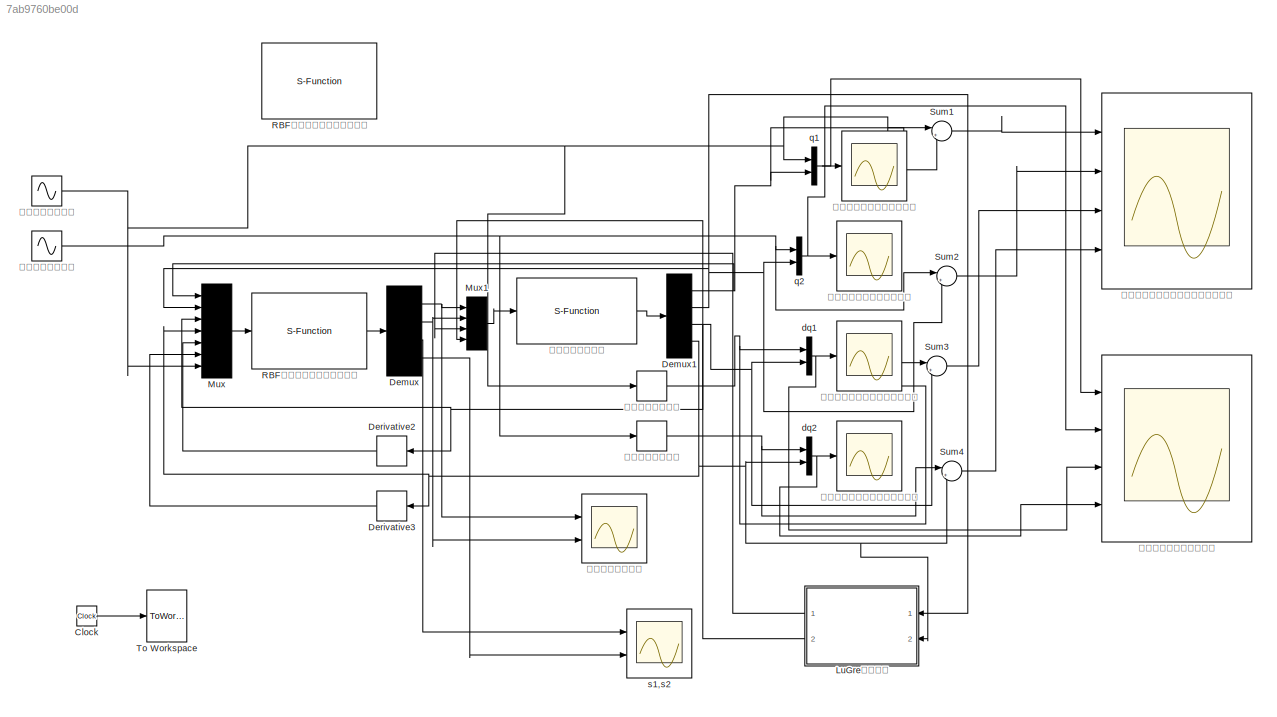
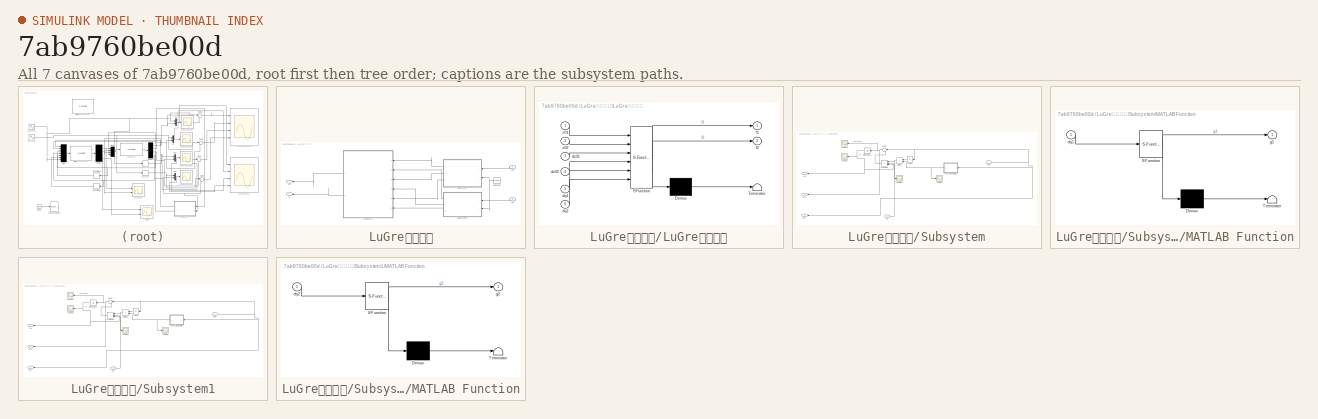
[diagram: thumbnail index - all 7 canvases of the model, root first then tree order]
MODEL slx_7ab9760be00d
KIND model
CONFIG AbsTol = auto
CONFIG EnableMultiTasking = off
CONFIG FixedStep = 0.001
CONFIG MaxStep = auto
CONFIG MinStep = auto
CONFIG RelTol = 1e-3
CONFIG SampleTimeConstraint = Unconstrained
CONFIG Solver = ode4
CONFIG SolverName = ode4
CONFIG StartTime = 0.0
CONFIG StopTime = 10.0
BLOCK [Clock] Clock
BLOCK [Demux] Demux
  DisplayOption = bar
  Ports = [1, 4]
BLOCK [Demux] Demux1
  DisplayOption = bar
  Ports = [1, 4]
BLOCK [Derivative] Derivative2
BLOCK [Derivative] Derivative3
BLOCK [SubSystem] LuGre摩擦模型
  Commented = on
  Ports = [2, 2]
  RequestExecContextInheritance = off
BLOCK [Constant] LuGre摩擦模型/Constant
  Value = 84000
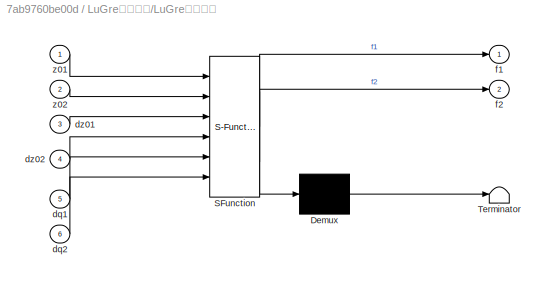
BLOCK [SubSystem] LuGre摩擦模型/LuGre摩擦模型
  ErrorFcn = Stateflow.Translate.translate
  PermitHierarchicalResolution = ExplicitOnly
  Ports = [6, 2]
  RequestExecContextInheritance = off
  SFBlockType = MATLAB Function
  TreatAsAtomicUnit = on
BLOCK [Demux] LuGre摩擦模型/LuGre摩擦模型/ Demux 
  Outputs = 1
  Ports = [1, 1]
BLOCK [S-Function] LuGre摩擦模型/LuGre摩擦模型/ SFunction 
  EnableBusSupport = on
  FunctionName = sf_sfun
  PortCounts = [6 3]
  Ports = [6, 3]
  SFcnIsStateOwnerBlock = off
  SFunctionDeploymentMode = off
  Tag = Stateflow S-Function 7
BLOCK [Terminator] LuGre摩擦模型/LuGre摩擦模型/ Terminator 
BLOCK [Inport] LuGre摩擦模型/LuGre摩擦模型/dq1
  IconDisplay = Port number
  Port = 5
BLOCK [Inport] LuGre摩擦模型/LuGre摩擦模型/dq2
  IconDisplay = Port number
  Port = 6
BLOCK [Inport] LuGre摩擦模型/LuGre摩擦模型/dz01
  IconDisplay = Port number
  Port = 3
BLOCK [Inport] LuGre摩擦模型/LuGre摩擦模型/dz02
  IconDisplay = Port number
  Port = 4
BLOCK [Outport] LuGre摩擦模型/LuGre摩擦模型/f1
  IconDisplay = Port number
BLOCK [Outport] LuGre摩擦模型/LuGre摩擦模型/f2
  IconDisplay = Port number
  Port = 2
BLOCK [Inport] LuGre摩擦模型/LuGre摩擦模型/z01
  IconDisplay = Port number
BLOCK [Inport] LuGre摩擦模型/LuGre摩擦模型/z02
  IconDisplay = Port number
  Port = 2
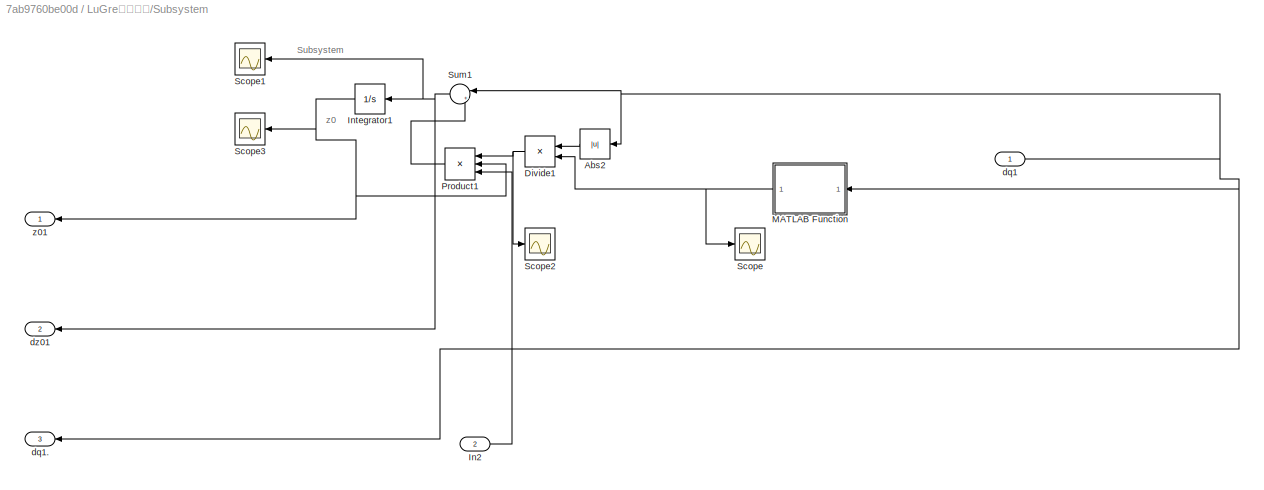
BLOCK [SubSystem] LuGre摩擦模型/Subsystem
  Ports = [2, 3]
  RequestExecContextInheritance = off
BLOCK [Abs] LuGre摩擦模型/Subsystem/Abs2
  SaturateOnIntegerOverflow = off
BLOCK [Product] LuGre摩擦模型/Subsystem/Divide1
  InputSameDT = off
  Inputs = */
  OutDataTypeStr = Inherit: Inherit via internal rule
  Ports = [2, 1]
  RndMeth = Floor
  SaturateOnIntegerOverflow = off
BLOCK [Inport] LuGre摩擦模型/Subsystem/In2
  IconDisplay = Port number
  Port = 2
BLOCK [Integrator] LuGre摩擦模型/Subsystem/Integrator1
  Ports = [1, 1]
BLOCK [SubSystem] LuGre摩擦模型/Subsystem/MATLAB Function
  ErrorFcn = Stateflow.Translate.translate
  PermitHierarchicalResolution = ExplicitOnly
  Ports = [1, 1]
  RequestExecContextInheritance = off
  SFBlockType = MATLAB Function
  TreatAsAtomicUnit = on
BLOCK [Demux] LuGre摩擦模型/Subsystem/MATLAB Function/ Demux 
  Outputs = 1
  Ports = [1, 1]
BLOCK [S-Function] LuGre摩擦模型/Subsystem/MATLAB Function/ SFunction 
  EnableBusSupport = on
  FunctionName = sf_sfun
  PortCounts = [1 2]
  Ports = [1, 2]
  SFcnIsStateOwnerBlock = off
  SFunctionDeploymentMode = off
  Tag = Stateflow S-Function 8
BLOCK [Terminator] LuGre摩擦模型/Subsystem/MATLAB Function/ Terminator 
BLOCK [Inport] LuGre摩擦模型/Subsystem/MATLAB Function/dq1
  IconDisplay = Port number
BLOCK [Outport] LuGre摩擦模型/Subsystem/MATLAB Function/g1
  IconDisplay = Port number
BLOCK [Product] LuGre摩擦模型/Subsystem/Product1
  InputSameDT = off
  Inputs = 3
  OutDataTypeStr = Inherit: Inherit via internal rule
  Ports = [3, 1]
  RndMeth = Floor
  SaturateOnIntegerOverflow = off
BLOCK [Scope] LuGre摩擦模型/Subsystem/Scope
  Floating = off
  NumInputPorts = 1
  Ports = [1]
  ScopeSpecificationString = Simulink.scopes.TimeScopeBlockCfg('CurrentConfiguration', extmgr.ConfigurationSet(extmgr.Configuration('Core','General UI',true),extmgr.Configuration('Core','Source UI',true),extmgr.Configuration('Sources','WiredSimulink',true,'DataLoggingVariableName','ScopeData2'),extmgr.Configuration('Visuals','Time Domain',true,'SerializedDisplays',{struct('MinYLimReal','0.00281','MaxYLimReal','0.00469','YLabe...<+1426ch>
BLOCK [Scope] LuGre摩擦模型/Subsystem/Scope1
  Floating = off
  NumInputPorts = 1
  Ports = [1]
  ScopeSpecificationString = Simulink.scopes.TimeScopeBlockCfg('CurrentConfiguration', extmgr.ConfigurationSet(extmgr.Configuration('Core','General UI',true),extmgr.Configuration('Core','Source UI',true),extmgr.Configuration('Sources','WiredSimulink',true,'DataLoggingVariableName','ScopeData3'),extmgr.Configuration('Visuals','Time Domain',true,'SerializedDisplays',{struct('MinYLimReal','-0.18084','MaxYLimReal','0.57565','YLab...<+1417ch>
BLOCK [Scope] LuGre摩擦模型/Subsystem/Scope2
  Floating = off
  NumInputPorts = 1
  Ports = [1]
  ScopeSpecificationString = Simulink.scopes.TimeScopeBlockCfg('CurrentConfiguration', extmgr.ConfigurationSet(extmgr.Configuration('Core','General UI',true),extmgr.Configuration('Core','Source UI',true),extmgr.Configuration('Sources','WiredSimulink',true,'DataLoggingVariableName','ScopeData4'),extmgr.Configuration('Visuals','Time Domain',true,'SerializedDisplays',{struct('MinYLimReal','17884.97608','MaxYLimReal','20554.9873'...<+1465ch>
BLOCK [Scope] LuGre摩擦模型/Subsystem/Scope3
  Floating = off
  NumInputPorts = 1
  Ports = [1]
  ScopeSpecificationString = Simulink.scopes.TimeScopeBlockCfg('CurrentConfiguration', extmgr.ConfigurationSet(extmgr.Configuration('Core','General UI',true),extmgr.Configuration('Core','Source UI',true),extmgr.Configuration('Sources','WiredSimulink',true,'DataLoggingVariableName','ScopeData5'),extmgr.Configuration('Visuals','Time Domain',true,'SerializedDisplays',{struct('MinYLimReal','-0.00005','MaxYLimReal','0.00043','YLab...<+1459ch>
BLOCK [Sum] LuGre摩擦模型/Subsystem/Sum1
  IconShape = round
  InputSameDT = off
  Inputs = |+-
  OutDataTypeStr = Inherit: Inherit via internal rule
  Ports = [2, 1]
  SaturateOnIntegerOverflow = off
BLOCK [Inport] LuGre摩擦模型/Subsystem/dq1
  IconDisplay = Port number
BLOCK [Outport] LuGre摩擦模型/Subsystem/dq1.
  IconDisplay = Port number
  Port = 3
BLOCK [Outport] LuGre摩擦模型/Subsystem/dz01
  IconDisplay = Port number
  Port = 2
BLOCK [Outport] LuGre摩擦模型/Subsystem/z01
  IconDisplay = Port number
BLOCK [SubSystem] LuGre摩擦模型/Subsystem1
  Ports = [2, 3]
  RequestExecContextInheritance = off
BLOCK [Abs] LuGre摩擦模型/Subsystem1/Abs2
  SaturateOnIntegerOverflow = off
BLOCK [Product] LuGre摩擦模型/Subsystem1/Divide1
  InputSameDT = off
  Inputs = */
  OutDataTypeStr = Inherit: Inherit via internal rule
  Ports = [2, 1]
  RndMeth = Floor
  SaturateOnIntegerOverflow = off
BLOCK [Inport] LuGre摩擦模型/Subsystem1/In2
  IconDisplay = Port number
  Port = 2
BLOCK [Integrator] LuGre摩擦模型/Subsystem1/Integrator1
  Ports = [1, 1]
BLOCK [SubSystem] LuGre摩擦模型/Subsystem1/MATLAB Function
  ErrorFcn = Stateflow.Translate.translate
  PermitHierarchicalResolution = ExplicitOnly
  Ports = [1, 1]
  RequestExecContextInheritance = off
  SFBlockType = MATLAB Function
  TreatAsAtomicUnit = on
BLOCK [Demux] LuGre摩擦模型/Subsystem1/MATLAB Function/ Demux 
  Outputs = 1
  Ports = [1, 1]
BLOCK [S-Function] LuGre摩擦模型/Subsystem1/MATLAB Function/ SFunction 
  EnableBusSupport = on
  FunctionName = sf_sfun
  PortCounts = [1 2]
  Ports = [1, 2]
  SFcnIsStateOwnerBlock = off
  SFunctionDeploymentMode = off
  Tag = Stateflow S-Function 1
BLOCK [Terminator] LuGre摩擦模型/Subsystem1/MATLAB Function/ Terminator 
BLOCK [Inport] LuGre摩擦模型/Subsystem1/MATLAB Function/dq2
  IconDisplay = Port number
BLOCK [Outport] LuGre摩擦模型/Subsystem1/MATLAB Function/g2
  IconDisplay = Port number
BLOCK [Product] LuGre摩擦模型/Subsystem1/Product1
  InputSameDT = off
  Inputs = 3
  OutDataTypeStr = Inherit: Inherit via internal rule
  Ports = [3, 1]
  RndMeth = Floor
  SaturateOnIntegerOverflow = off
BLOCK [Scope] LuGre摩擦模型/Subsystem1/Scope
  Floating = off
  NumInputPorts = 1
  Ports = [1]
  ScopeSpecificationString = Simulink.scopes.TimeScopeBlockCfg('CurrentConfiguration', extmgr.ConfigurationSet(extmgr.Configuration('Core','General UI',true),extmgr.Configuration('Core','Source UI',true),extmgr.Configuration('Sources','WiredSimulink',true,'DataLoggingVariableName','ScopeData2'),extmgr.Configuration('Visuals','Time Domain',true,'SerializedDisplays',{struct('MinYLimReal','0.00281','MaxYLimReal','0.00469','YLabe...<+1426ch>
BLOCK [Scope] LuGre摩擦模型/Subsystem1/Scope1
  Floating = off
  NumInputPorts = 1
  Ports = [1]
  ScopeSpecificationString = Simulink.scopes.TimeScopeBlockCfg('CurrentConfiguration', extmgr.ConfigurationSet(extmgr.Configuration('Core','General UI',true),extmgr.Configuration('Core','Source UI',true),extmgr.Configuration('Sources','WiredSimulink',true,'DataLoggingVariableName','ScopeData3'),extmgr.Configuration('Visuals','Time Domain',true,'SerializedDisplays',{struct('MinYLimReal','-0.18084','MaxYLimReal','0.57565','YLab...<+1417ch>
BLOCK [Scope] LuGre摩擦模型/Subsystem1/Scope2
  Floating = off
  NumInputPorts = 1
  Ports = [1]
  ScopeSpecificationString = Simulink.scopes.TimeScopeBlockCfg('CurrentConfiguration', extmgr.ConfigurationSet(extmgr.Configuration('Core','General UI',true),extmgr.Configuration('Core','Source UI',true),extmgr.Configuration('Sources','WiredSimulink',true,'DataLoggingVariableName','ScopeData4'),extmgr.Configuration('Visuals','Time Domain',true,'SerializedDisplays',{struct('MinYLimReal','17884.97608','MaxYLimReal','20554.9873'...<+1465ch>
BLOCK [Scope] LuGre摩擦模型/Subsystem1/Scope3
  Floating = off
  NumInputPorts = 1
  Ports = [1]
  ScopeSpecificationString = Simulink.scopes.TimeScopeBlockCfg('CurrentConfiguration', extmgr.ConfigurationSet(extmgr.Configuration('Core','General UI',true),extmgr.Configuration('Core','Source UI',true),extmgr.Configuration('Sources','WiredSimulink',true,'DataLoggingVariableName','ScopeData5'),extmgr.Configuration('Visuals','Time Domain',true,'SerializedDisplays',{struct('MinYLimReal','-0.00005','MaxYLimReal','0.00043','YLab...<+1459ch>
BLOCK [Sum] LuGre摩擦模型/Subsystem1/Sum1
  IconShape = round
  InputSameDT = off
  Inputs = |+-
  OutDataTypeStr = Inherit: Inherit via internal rule
  Ports = [2, 1]
  SaturateOnIntegerOverflow = off
BLOCK [Inport] LuGre摩擦模型/Subsystem1/dq2
  IconDisplay = Port number
BLOCK [Outport] LuGre摩擦模型/Subsystem1/dq2.
  IconDisplay = Port number
  Port = 3
BLOCK [Outport] LuGre摩擦模型/Subsystem1/dz02
  IconDisplay = Port number
  Port = 2
BLOCK [Outport] LuGre摩擦模型/Subsystem1/z02
  IconDisplay = Port number
BLOCK [Inport] LuGre摩擦模型/dq1
  IconDisplay = Port number
BLOCK [Inport] LuGre摩擦模型/dq2
  IconDisplay = Port number
  Port = 2
BLOCK [Outport] LuGre摩擦模型/f1
  IconDisplay = Port number
BLOCK [Outport] LuGre摩擦模型/f2
  IconDisplay = Port number
  Port = 2
BLOCK [Mux] Mux
  DisplayOption = bar
  Inputs = 7
  Ports = [7, 1]
BLOCK [Mux] Mux1
  DisplayOption = bar
  Ports = [4, 1]
BLOCK [S-Function] RBF神经网络固定时间控制器
  EnableBusSupport = off
  FunctionName = Fixed_time_NNcontroller
  Ports = [1, 1]
  SFcnIsStateOwnerBlock = off
  SFunctionDeploymentMode = off
BLOCK [S-Function] RBF神经网络普通滑模控制器
  Commented = on
  EnableBusSupport = off
  FunctionName = SMC_NNcontroller
  Ports = [1, 1]
  SFcnIsStateOwnerBlock = off
  SFunctionDeploymentMode = off
BLOCK [Sum] Sum1
  IconShape = round
  InputSameDT = off
  Inputs = |+-
  OutDataTypeStr = Inherit: Inherit via internal rule
  Ports = [2, 1]
  SaturateOnIntegerOverflow = off
BLOCK [Sum] Sum2
  IconShape = round
  InputSameDT = off
  Inputs = |+-
  OutDataTypeStr = Inherit: Inherit via internal rule
  Ports = [2, 1]
  SaturateOnIntegerOverflow = off
BLOCK [Sum] Sum3
  IconShape = round
  InputSameDT = off
  Inputs = |+-
  OutDataTypeStr = Inherit: Inherit via internal rule
  Ports = [2, 1]
  SaturateOnIntegerOverflow = off
BLOCK [Sum] Sum4
  IconShape = round
  InputSameDT = off
  Inputs = |+-
  OutDataTypeStr = Inherit: Inherit via internal rule
  Ports = [2, 1]
  SaturateOnIntegerOverflow = off
BLOCK [ToWorkspace] To Workspace
  FixptAsFi = on
  MaxDataPoints = inf
  Ports = [1]
  SampleTime = -1
  VariableName = t
BLOCK [Mux] dq1
  DisplayOption = bar
  Inputs = 2
  Ports = [2, 1]
BLOCK [Mux] dq2
  DisplayOption = bar
  Inputs = 2
  Ports = [2, 1]
BLOCK [Mux] q1
  DisplayOption = bar
  Inputs = 2
  Ports = [2, 1]
BLOCK [Mux] q2
  DisplayOption = bar
  Inputs = 2
  Ports = [2, 1]
BLOCK [Scope] s1,s2
  Floating = off
  NumInputPorts = 2
  Ports = [2]
  ScopeSpecificationString = Simulink.scopes.TimeScopeBlockCfg('CurrentConfiguration', extmgr.ConfigurationSet(extmgr.Configuration('Core','General UI',true,'FigureColor',[1 1 1]),extmgr.Configuration('Core','Source UI',true),extmgr.Configuration('Sources','WiredSimulink',true,'DataLoggingVariableName','ScopeData4'),extmgr.Configuration('Visuals','Time Domain',true,'SerializedDisplays',{struct('MinYLimReal','-2.10457','MaxYLi...<+2645ch>
BLOCK [S-Function] 二关节机械臂模型
  EnableBusSupport = off
  FunctionName = Fixed_time_NNplant
  Ports = [1, 1]
  SFcnIsStateOwnerBlock = off
  SFunctionDeploymentMode = off
BLOCK [Scope] 关节一和二的力矩
  Floating = off
  NumInputPorts = 2
  Ports = [2]
  ScopeSpecificationString = Simulink.scopes.TimeScopeBlockCfg('CurrentConfiguration', extmgr.ConfigurationSet(extmgr.Configuration('Core','General UI',true,'FigureColor',[1 1 1]),extmgr.Configuration('Core','Source UI',true),extmgr.Configuration('Sources','WiredSimulink',true,'DataLoggingVariableName','ScopeData3'),extmgr.Configuration('Visuals','Time Domain',true,'SerializedDisplays',{struct('MinYLimReal','-417.72605','MaxY...<+1863ch>
BLOCK [Scope] 关节一期望角度与实际角度
  Floating = off
  NumInputPorts = 1
  Ports = [1]
  ScopeSpecificationString = Simulink.scopes.TimeScopeBlockCfg('CurrentConfiguration', extmgr.ConfigurationSet(extmgr.Configuration('Core','General UI',true,'FigureColor',[1 1 1]),extmgr.Configuration('Core','Source UI',true),extmgr.Configuration('Sources','WiredSimulink',true,'DataLoggingVariableName','ScopeData2'),extmgr.Configuration('Visuals','Time Domain',true,'SerializedDisplays',{struct('MinYLimReal','-0.62508','MaxYLi...<+1589ch>
BLOCK [Scope] 关节一期望角速度与实际角速度
  Floating = off
  NumInputPorts = 1
  Ports = [1]
  ScopeSpecificationString = Simulink.scopes.TimeScopeBlockCfg('CurrentConfiguration', extmgr.ConfigurationSet(extmgr.Configuration('Core','General UI',true,'FigureColor',[1 1 1]),extmgr.Configuration('Core','Source UI',true),extmgr.Configuration('Sources','WiredSimulink',true,'DataLoggingVariableName','ScopeData5'),extmgr.Configuration('Visuals','Time Domain',true,'SerializedDisplays',{struct('MinYLimReal','-1.97669','MaxYLi...<+1560ch>
BLOCK [Scope] 关节一期望角速度与实际角速度误差
  Floating = off
  NumInputPorts = 4
  Ports = [4]
  ScopeSpecificationString = Simulink.scopes.TimeScopeBlockCfg('CurrentConfiguration', extmgr.ConfigurationSet(extmgr.Configuration('Core','General UI',true,'FigureColor',[1 1 1]),extmgr.Configuration('Core','Source UI',true),extmgr.Configuration('Sources','WiredSimulink',true,'DataLoggingVariableName','ScopeData6'),extmgr.Configuration('Visuals','Time Domain',true,'SerializedDisplays',{struct('MinYLimReal','-0.11101','MaxYLi...<+3897ch>
BLOCK [Scope] 关节二期望角度与实际角度
  Floating = off
  NumInputPorts = 1
  Ports = [1]
  ScopeSpecificationString = Simulink.scopes.TimeScopeBlockCfg('CurrentConfiguration', extmgr.ConfigurationSet(extmgr.Configuration('Core','General UI',true,'FigureColor',[1 1 1]),extmgr.Configuration('Core','Source UI',true),extmgr.Configuration('Sources','WiredSimulink',true,'DataLoggingVariableName','ScopeData7'),extmgr.Configuration('Visuals','Time Domain',true,'SerializedDisplays',{struct('MinYLimReal','-0.62501','MaxYLi...<+1589ch>
BLOCK [Scope] 关节二期望角速度与实际角速度
  Floating = off
  NumInputPorts = 1
  Ports = [1]
  ScopeSpecificationString = Simulink.scopes.TimeScopeBlockCfg('CurrentConfiguration', extmgr.ConfigurationSet(extmgr.Configuration('Core','General UI',true,'FigureColor',[1 1 1]),extmgr.Configuration('Core','Source UI',true),extmgr.Configuration('Sources','WiredSimulink',true),extmgr.Configuration('Visuals','Time Domain',true,'SerializedDisplays',{struct('MinYLimReal','-2.01969','MaxYLimReal','2.42679','YLabelReal','','MinYL...<+1527ch>
BLOCK [Scope] 关节期望角度与实际角度
  Floating = off
  NumInputPorts = 4
  Ports = [4]
  ScopeSpecificationString = Simulink.scopes.TimeScopeBlockCfg('CurrentConfiguration', extmgr.ConfigurationSet(extmgr.Configuration('Core','General UI',true,'FigureColor',[1 1 1]),extmgr.Configuration('Core','Source UI',true),extmgr.Configuration('Sources','WiredSimulink',true,'DataLoggingVariableName','ScopeData3'),extmgr.Configuration('Visuals','Time Domain',true,'SerializedDisplays',{struct('MinYLimReal','-0.62547','MaxYLi...<+3960ch>
BLOCK [Derivative] 给定关节一角速度
BLOCK [Derivative] 给定关节二角速度
BLOCK [Sin] 给定关节角一轨迹
  Amplitude = 0.5
  Frequency = pi
  Ports = [0, 1]
  SampleTime = 0
BLOCK [Sin] 给定关节角二轨迹
  Amplitude = 0.5
  Frequency = pi
  Ports = [0, 1]
  SampleTime = 0
ANNOTATION LuGre摩擦模型/Subsystem: Subsystem
ANNOTATION LuGre摩擦模型/Subsystem: z0
ANNOTATION LuGre摩擦模型/Subsystem1: Subsystem
ANNOTATION LuGre摩擦模型/Subsystem1: z0
LINE Clock:1 -> To Workspace:1
NET Demux1:1 -> Mux:1, Sum1:2, q1:2
NET Demux1:2 -> LuGre摩擦模型:1, Mux:2, Sum2:2, q2:2
NET Demux1:3 -> Derivative2:1, Mux:3, Sum3:2, dq1:2
NET Demux1:4 -> Derivative3:1, LuGre摩擦模型:2, Mux:4, Sum4:2, dq2:2
NET Demux:1 -> Mux1:1, 关节一和二的力矩:1
NET Demux:2 -> Mux1:2, 关节一和二的力矩:2
LINE Demux:3 -> s1,s2:1
LINE Demux:4 -> s1,s2:2
LINE Derivative2:1 -> Mux:5
LINE Derivative3:1 -> Mux:6
NET LuGre摩擦模型/Constant:1 -> LuGre摩擦模型/Subsystem1:2, LuGre摩擦模型/Subsystem:2
LINE LuGre摩擦模型/LuGre摩擦模型:1 -> LuGre摩擦模型/f1:1
LINE LuGre摩擦模型/LuGre摩擦模型:2 -> LuGre摩擦模型/f2:1
LINE LuGre摩擦模型/Subsystem/Abs2:1 -> LuGre摩擦模型/Subsystem/Divide1:1
NET LuGre摩擦模型/Subsystem/Divide1:1 -> LuGre摩擦模型/Subsystem/Product1:1, LuGre摩擦模型/Subsystem/Scope2:1
LINE LuGre摩擦模型/Subsystem/In2:1 -> LuGre摩擦模型/Subsystem/Product1:3
NET LuGre摩擦模型/Subsystem/Integrator1:1 -> LuGre摩擦模型/Subsystem/Product1:2, LuGre摩擦模型/Subsystem/Scope3:1, LuGre摩擦模型/Subsystem/z01:1
NET LuGre摩擦模型/Subsystem/MATLAB Function:1 -> LuGre摩擦模型/Subsystem/Divide1:2, LuGre摩擦模型/Subsystem/Scope:1
LINE LuGre摩擦模型/Subsystem/Product1:1 -> LuGre摩擦模型/Subsystem/Sum1:2
NET LuGre摩擦模型/Subsystem/Sum1:1 -> LuGre摩擦模型/Subsystem/Integrator1:1, LuGre摩擦模型/Subsystem/Scope1:1, LuGre摩擦模型/Subsystem/dz01:1
NET LuGre摩擦模型/Subsystem/dq1:1 -> LuGre摩擦模型/Subsystem/Abs2:1, LuGre摩擦模型/Subsystem/MATLAB Function:1, LuGre摩擦模型/Subsystem/Sum1:1, LuGre摩擦模型/Subsystem/dq1.:1
LINE LuGre摩擦模型/Subsystem1/Abs2:1 -> LuGre摩擦模型/Subsystem1/Divide1:1
NET LuGre摩擦模型/Subsystem1/Divide1:1 -> LuGre摩擦模型/Subsystem1/Product1:1, LuGre摩擦模型/Subsystem1/Scope2:1
LINE LuGre摩擦模型/Subsystem1/In2:1 -> LuGre摩擦模型/Subsystem1/Product1:3
NET LuGre摩擦模型/Subsystem1/Integrator1:1 -> LuGre摩擦模型/Subsystem1/Product1:2, LuGre摩擦模型/Subsystem1/Scope3:1, LuGre摩擦模型/Subsystem1/z02:1
NET LuGre摩擦模型/Subsystem1/MATLAB Function:1 -> LuGre摩擦模型/Subsystem1/Divide1:2, LuGre摩擦模型/Subsystem1/Scope:1
LINE LuGre摩擦模型/Subsystem1/Product1:1 -> LuGre摩擦模型/Subsystem1/Sum1:2
NET LuGre摩擦模型/Subsystem1/Sum1:1 -> LuGre摩擦模型/Subsystem1/Integrator1:1, LuGre摩擦模型/Subsystem1/Scope1:1, LuGre摩擦模型/Subsystem1/dz02:1
NET LuGre摩擦模型/Subsystem1/dq2:1 -> LuGre摩擦模型/Subsystem1/Abs2:1, LuGre摩擦模型/Subsystem1/MATLAB Function:1, LuGre摩擦模型/Subsystem1/Sum1:1, LuGre摩擦模型/Subsystem1/dq2.:1
LINE LuGre摩擦模型/Subsystem1:1 -> LuGre摩擦模型/LuGre摩擦模型:2
LINE LuGre摩擦模型/Subsystem1:2 -> LuGre摩擦模型/LuGre摩擦模型:4
LINE LuGre摩擦模型/Subsystem1:3 -> LuGre摩擦模型/LuGre摩擦模型:6
LINE LuGre摩擦模型/Subsystem:1 -> LuGre摩擦模型/LuGre摩擦模型:1
LINE LuGre摩擦模型/Subsystem:2 -> LuGre摩擦模型/LuGre摩擦模型:3
LINE LuGre摩擦模型/Subsystem:3 -> LuGre摩擦模型/LuGre摩擦模型:5
LINE LuGre摩擦模型/dq1:1 -> LuGre摩擦模型/Subsystem:1
LINE LuGre摩擦模型/dq2:1 -> LuGre摩擦模型/Subsystem1:1
LINE LuGre摩擦模型:1 -> Mux1:3
LINE LuGre摩擦模型:2 -> Mux1:4
LINE Mux1:1 -> 二关节机械臂模型:1
LINE Mux:1 -> RBF神经网络固定时间控制器:1
LINE RBF神经网络固定时间控制器:1 -> Demux:1
LINE Sum1:1 -> 关节一期望角速度与实际角速度误差:1
LINE Sum2:1 -> 关节一期望角速度与实际角速度误差:2
LINE Sum3:1 -> 关节一期望角速度与实际角速度误差:3
LINE Sum4:1 -> 关节一期望角速度与实际角速度误差:4
NET dq1:1 -> 关节一期望角速度与实际角速度:1, 关节期望角度与实际角度:3
NET dq2:1 -> 关节二期望角速度与实际角速度:1, 关节期望角度与实际角度:4
NET q1:1 -> 关节一期望角度与实际角度:1, 关节期望角度与实际角度:1
NET q2:1 -> 关节二期望角度与实际角度:1, 关节期望角度与实际角度:2
LINE 二关节机械臂模型:1 -> Demux1:1
NET 给定关节一角速度:1 -> Sum3:1, dq1:1
NET 给定关节二角速度:1 -> Sum4:1, dq2:1
NET 给定关节角一轨迹:1 -> Mux:7, Sum1:1, q1:1, 给定关节一角速度:1
NET 给定关节角二轨迹:1 -> Sum2:1, q2:1, 给定关节二角速度:1
note: NET lines group one-source signal fan-out (src -> all destinations, sorted); 1:1 wires keep LINE
CHART LuGre摩擦模型/Subsystem1/MATLAB Function states=1 transitions=1
  STATE_LABEL 'eML_blk_kernel()'
  STATE_LABEL 'SCRIPT:\nfunction g2 = fcn(dq2)\nxite1 = 260;\nxite2 = 28;\nFc = 3.82;\nFs = 8.16;\ndqs = 0.0125;\n\ng2 = Fc + (Fs-Fc)*exp(-(dq2/dqs)^2);\n\n'
CHART LuGre摩擦模型/LuGre摩擦模型 states=1 transitions=1
  STATE_LABEL 'eML_blk_kernel()'
  STATE_LABEL 'SCRIPT:\nfunction [f1,f2] = fcn(z01,z02,dz01,dz02,dq1,dq2)\nxite0 = 84000;\nxite1 = 260;\nxite2 = 28;\nFc = 3.82;\nFs = 8.16;\ndqs = 0.0125;\nlamda = 1;\n\nf1 = lamda * (xite0 * z01 + xite1 * dz01 + xite2 * dq1);\nf2 = lamda * (xite0 * z02 + xite1 * dz02 + xite2 * dq2);\n'
CHART LuGre摩擦模型/Subsystem/MATLAB Function states=1 transitions=1
  STATE_LABEL 'eML_blk_kernel()'
  STATE_LABEL 'SCRIPT:\nfunction g1 = fcn(dq1)\nxite1 = 260;\nxite2 = 28;\nFc = 3.82;\nFs = 8.16;\ndqs = 0.0125;\n\ng1 = Fc + (Fs-Fc)*exp(-(dq1/dqs)^2);\n\n'
